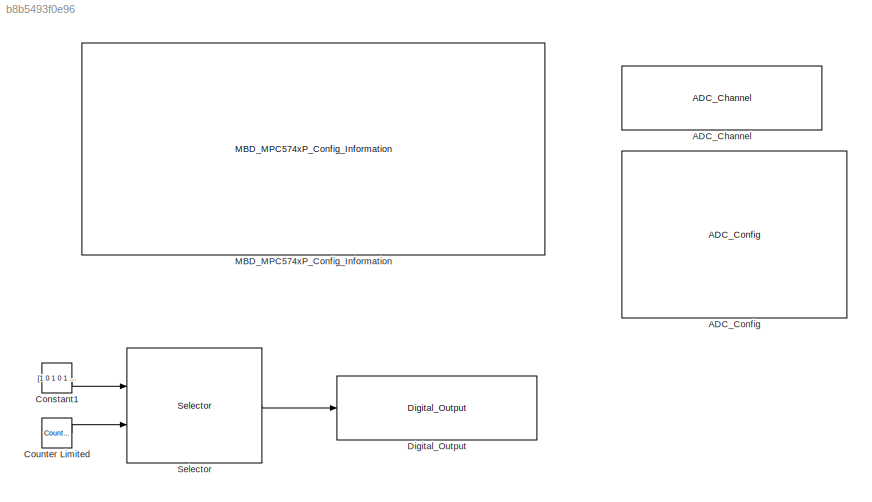
MODEL slx_b8b5493f0e96
KIND model
CONFIG AbsTol = auto
CONFIG EnableMultiTasking = off
CONFIG FixedStep = auto
CONFIG InitFcn = mbd_pnt_consistency_checks(bdroot(gcs));
CONFIG MaxStep = auto
CONFIG MinStep = auto
CONFIG RelTol = 1e-3
CONFIG SampleTimeConstraint = Unconstrained
CONFIG Solver = FixedStepDiscrete
CONFIG SolverName = FixedStepDiscrete
CONFIG StartTime = 0.0
CONFIG StopTime = 1
BLOCK [Reference] ADC_Channel  REF=mbd_pnt_ec_toolbox/MPC574xP/Motor Control Blocks/ADC_Channel
  Commented = on
  Ports = [0, 1]
  SourceBlock = mbd_pnt_ec_toolbox/MPC574xP/Motor Control Blocks/ADC_Channel
  SourceProductName = Model Based Design Toolbox for MPC574xP
  SourceType = adc_pnt_channel_block
BLOCK [Reference] ADC_Config  REF=mbd_pnt_ec_toolbox/MPC574xP/Motor Control Blocks/ADC_Config
  Commented = on
  Ports = []
  SourceBlock = mbd_pnt_ec_toolbox/MPC574xP/Motor Control Blocks/ADC_Config
  SourceProductName = Model Based Design Toolbox for MPC574xP
  SourceType = adc_pnt_config_block
BLOCK [Constant] Constant1
  OutDataTypeStr = boolean
  Value = [1 0 1 0 1 0 1 0 1 0 1 0 1 0 1 0 1 0 1 0 1 0 1 0 1 0 1 0 1 0 0 0]
BLOCK [Reference] Counter Limited  REF=simulink/Sources/Counter
Limited
  Ports = [0, 1]
  SourceBlock = simulink/Sources/Counter\nLimited
  SourceProductBaseCode = SL
  SourceProductName = Simulink
  SourceType = Counter Limited
BLOCK [Reference] Digital_Output  REF=mbd_pnt_ec_toolbox/MPC574xP/Peripheral Interface Blocks/Digital_Output
  Ports = [1]
  SourceBlock = mbd_pnt_ec_toolbox/MPC574xP/Peripheral Interface Blocks/Digital_Output
  SourceProductName = Model Based Design Toolbox for MPC574xP
  SourceType = GPIO_PNT_Output
BLOCK [Reference] MBD_MPC574xP_Config_Information  REF=mbd_pnt_ec_toolbox/MPC574xP/MBD_MPC574xP_Config_Information
  Ports = []
  Priority = 0
  SourceBlock = mbd_pnt_ec_toolbox/MPC574xP/MBD_MPC574xP_Config_Information
  SourceProductName = Model Based Design Toolbox for MPC574xP
  SourceType = MBDTBX_EC_PNT
BLOCK [Selector] Selector
  IndexMode = Zero-based
  IndexOptions = Index vector (port)
  Indices = [1 3]
  InputPortWidth = 32
  OutputSizes = 1
  Ports = [2, 1]
LINE Constant1:1 -> Selector:1
LINE Counter Limited:1 -> Selector:2
LINE Selector:1 -> Digital_Output:1
